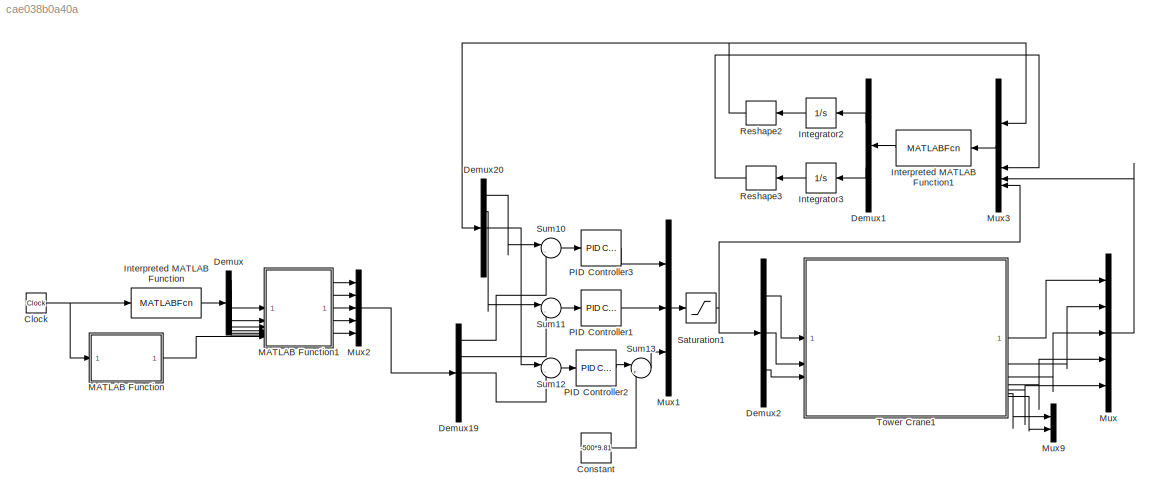
MODEL slx_cae038b0a40a
KIND model
CONFIG AbsTol = 1e-3
CONFIG EnableMultiTasking = on
CONFIG FixedStep = 0.024
CONFIG MaxStep = auto
CONFIG MinStep = auto
CONFIG RelTol = 1e-3
CONFIG SampleTimeConstraint = Unconstrained
CONFIG SolverName = FixedStepAuto
CONFIG StartTime = 0.0
CONFIG StopTime = 100
WORKSPACE source: MATLAB code (in-file)
WORKSPACE rCord = 0.25
WORKSPACE rho = 8000
WORKSPACE rContactHoist = 7
WORKSPACE rPitchHoist = rContactHoist + rCord  (= 7.25)
WORKSPACE code: Hoist.RGB = [0.35 0.35 1.0]; % Color, RGB 0-1
WORKSPACE rContactTrolley = 5
WORKSPACE rPitchTrolley = rContactTrolley + rCord  (= 5.25)
WORKSPACE code: Trolley.RGB = [1 0.15 0.15]; % Color, RGB 0-1
BLOCK [Clock] Clock
BLOCK [Constant] Constant
  Value = -500*9.81
BLOCK [Demux] Demux
  Outputs = 6
BLOCK [Demux] Demux1
  NameLocation = top
  Outputs = 2
BLOCK [Demux] Demux19
  Outputs = 5
BLOCK [Demux] Demux2
  Outputs = 3
BLOCK [Demux] Demux20
  Outputs = 5
BLOCK [Integrator] Integrator2
  InitialCondition = [0;0;45;0;0]
  NameLocation = top
BLOCK [Integrator] Integrator3
  InitialCondition = [0;0;0;0;0]
  NameLocation = top
BLOCK [MATLABFcn] Interpreted MATLAB Function
  MATLABFcn = referenceflat1
  OutputDimensions = 6
BLOCK [MATLABFcn] Interpreted MATLAB Function1
  MATLABFcn = finiteeso1
  NameLocation = top
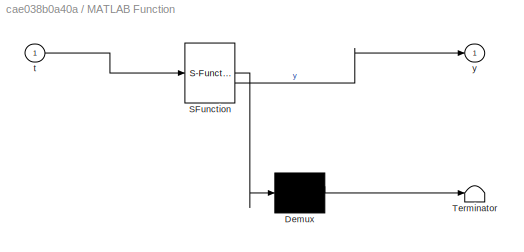
BLOCK [SubSystem] MATLAB Function
  ErrorFcn = Stateflow.Translate.translate
  PermitHierarchicalResolution = ExplicitOnly
  SFBlockType = MATLAB Function
  TreatAsAtomicUnit = on
BLOCK [Demux] MATLAB Function/ Demux 
  Outputs = 1
BLOCK [S-Function] MATLAB Function/ SFunction 
  EnableBusSupport = on
  FunctionName = sf_sfun
  PortCounts = [1 2]
  SFcnIsStateOwnerBlock = off
  SFunctionDeploymentMode = off
  Tag = Stateflow S-Function 14
BLOCK [Terminator] MATLAB Function/ Terminator 
BLOCK [Inport] MATLAB Function/t
BLOCK [Outport] MATLAB Function/y
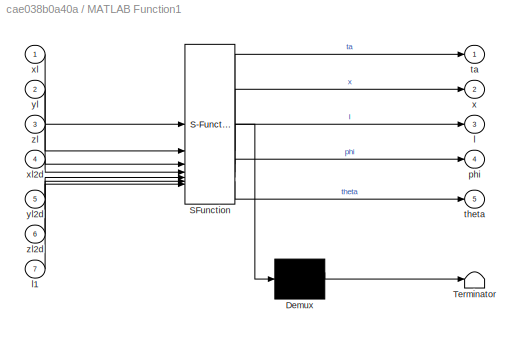
BLOCK [SubSystem] MATLAB Function1
  ErrorFcn = Stateflow.Translate.translate
  PermitHierarchicalResolution = ExplicitOnly
  SFBlockType = MATLAB Function
  TreatAsAtomicUnit = on
BLOCK [Demux] MATLAB Function1/ Demux 
  Outputs = 1
BLOCK [S-Function] MATLAB Function1/ SFunction 
  EnableBusSupport = on
  FunctionName = sf_sfun
  PortCounts = [7 6]
  SFcnIsStateOwnerBlock = off
  SFunctionDeploymentMode = off
  Tag = Stateflow S-Function 1
BLOCK [Terminator] MATLAB Function1/ Terminator 
BLOCK [Outport] MATLAB Function1/l
  Port = 3
BLOCK [Inport] MATLAB Function1/l1
  Port = 7
BLOCK [Outport] MATLAB Function1/phi
  Port = 4
BLOCK [Outport] MATLAB Function1/ta
BLOCK [Outport] MATLAB Function1/theta
  Port = 5
BLOCK [Outport] MATLAB Function1/x
  Port = 2
BLOCK [Inport] MATLAB Function1/xl
BLOCK [Inport] MATLAB Function1/xl2d
  Port = 4
BLOCK [Inport] MATLAB Function1/yl
  Port = 2
BLOCK [Inport] MATLAB Function1/yl2d
  Port = 5
BLOCK [Inport] MATLAB Function1/zl
  Port = 3
BLOCK [Inport] MATLAB Function1/zl2d
  Port = 6
BLOCK [Mux] Mux
  DisplayOption = bar
  Inputs = 5
BLOCK [Mux] Mux1
  DisplayOption = bar
  Inputs = 3
BLOCK [Mux] Mux2
  DisplayOption = bar
  Inputs = 5
BLOCK [Mux] Mux3
  DisplayOption = bar
  NameLocation = top
BLOCK [Mux] Mux9
  DisplayOption = bar
  Inputs = 2
BLOCK [Reference] PID Controller1  REF=slpidlib/PID Controller
  SourceBlock = slpidlib/PID Controller
  SourceType = PID 1dof
BLOCK [Reference] PID Controller2  REF=slpidlib/PID Controller
  SourceBlock = slpidlib/PID Controller
  SourceType = PID 1dof
BLOCK [Reference] PID Controller3  REF=slpidlib/PID Controller
  SourceBlock = slpidlib/PID Controller
  SourceType = PID 1dof
BLOCK [Reshape] Reshape2
  NameLocation = top
  OutputDimensionality = Customize
  OutputDimensions = [5,1]
BLOCK [Reshape] Reshape3
  NameLocation = top
  OutputDimensionality = Customize
  OutputDimensions = [5,1]
BLOCK [Saturate] Saturation1
  LowerLimit = [-4000;-4000;-10000]
  UpperLimit = [4000;4000;0]
BLOCK [Sum] Sum10
  Inputs = |-+
BLOCK [Sum] Sum11
  Inputs = |-+
BLOCK [Sum] Sum12
  Inputs = |-+
BLOCK [Sum] Sum13
  Inputs = |++
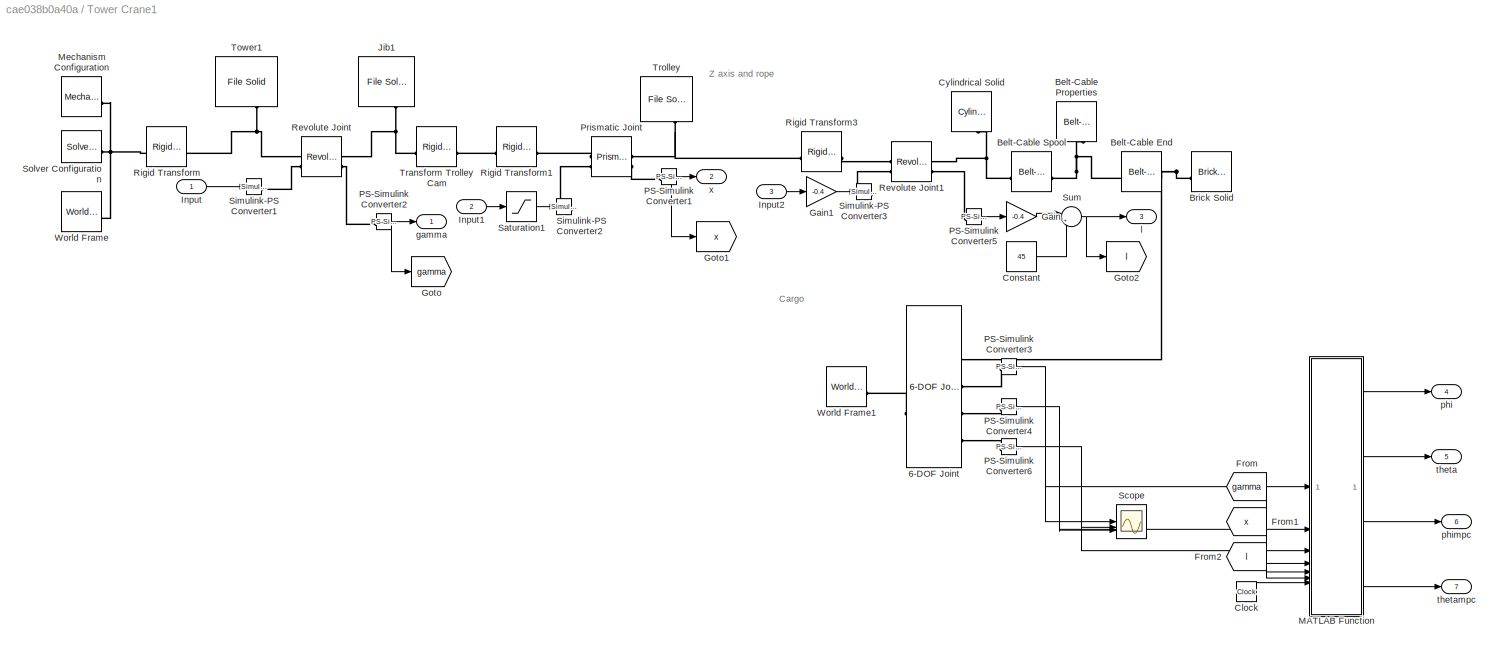
BLOCK [SubSystem] Tower Crane1
  Tag = PublishSubsystem
BLOCK [Reference] Tower Crane1/6-DOF Joint  REF=sm_lib/Joints/6-DOF Joint
  SourceBlock = sm_lib/Joints/6-DOF Joint
  SourceType = 6-DOF Joint
BLOCK [Reference] Tower Crane1/Belt-Cable End  REF=sm_lib/Belts and Cables/Belt-Cable End
  NameLocation = top
  SourceBlock = sm_lib/Belts and Cables/Belt-Cable End
  SourceType = Belt-Cable End
BLOCK [Reference] Tower Crane1/Belt-Cable Properties  REF=sm_lib/Belts and Cables/Belt-Cable
Properties
  NameLocation = right
  SourceBlock = sm_lib/Belts and Cables/Belt-Cable\nProperties
  SourceType = Belt-Cable\nProperties
BLOCK [Reference] Tower Crane1/Belt-Cable Spool  REF=sm_lib/Belts and Cables/Belt-Cable Spool
  SourceBlock = sm_lib/Belts and Cables/Belt-Cable Spool
  SourceType = Belt-Cable Spool
BLOCK [Reference] Tower Crane1/Brick Solid  REF=sm_lib/Body Elements/Brick Solid
  NameLocation = right
  SourceBlock = sm_lib/Body Elements/Brick Solid
  SourceType = Brick Solid
BLOCK [Clock] Tower Crane1/Clock
BLOCK [Constant] Tower Crane1/Constant
  Value = 45
BLOCK [Reference] Tower Crane1/Cylindrical Solid  REF=sm_lib/Body Elements/Cylindrical Solid
  NameLocation = left
  SourceBlock = sm_lib/Body Elements/Cylindrical Solid
  SourceType = Cylindrical Solid
BLOCK [From] Tower Crane1/From
  GotoTag = gamma
BLOCK [From] Tower Crane1/From1
  GotoTag = x
BLOCK [From] Tower Crane1/From2
  GotoTag = l
BLOCK [Gain] Tower Crane1/Gain
  Gain = -0.4
BLOCK [Gain] Tower Crane1/Gain1
  Gain = -0.4
BLOCK [Goto] Tower Crane1/Goto
  GotoTag = gamma
BLOCK [Goto] Tower Crane1/Goto1
  GotoTag = x
BLOCK [Goto] Tower Crane1/Goto2
  GotoTag = l
BLOCK [Inport] Tower Crane1/Input
BLOCK [Inport] Tower Crane1/Input1
  Port = 2
BLOCK [Inport] Tower Crane1/Input2
  Port = 3
BLOCK [Reference] Tower Crane1/Jib1  REF=sm_lib/Body Elements/File Solid
  NameLocation = left
  SourceBlock = sm_lib/Body Elements/File Solid
  SourceType = File Solid
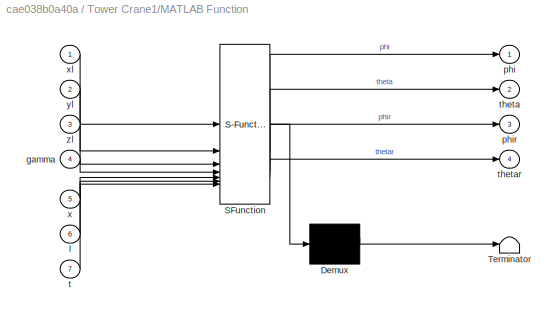
BLOCK [SubSystem] Tower Crane1/MATLAB Function
  ErrorFcn = Stateflow.Translate.translate
  PermitHierarchicalResolution = ExplicitOnly
  SFBlockType = MATLAB Function
  TreatAsAtomicUnit = on
BLOCK [Demux] Tower Crane1/MATLAB Function/ Demux 
  Outputs = 1
BLOCK [S-Function] Tower Crane1/MATLAB Function/ SFunction 
  EnableBusSupport = on
  FunctionName = sf_sfun
  PortCounts = [7 5]
  SFcnIsStateOwnerBlock = off
  SFunctionDeploymentMode = off
  Tag = Stateflow S-Function 3
BLOCK [Terminator] Tower Crane1/MATLAB Function/ Terminator 
BLOCK [Inport] Tower Crane1/MATLAB Function/gamma
  Port = 4
BLOCK [Inport] Tower Crane1/MATLAB Function/l
  Port = 6
BLOCK [Outport] Tower Crane1/MATLAB Function/phi
BLOCK [Outport] Tower Crane1/MATLAB Function/phir
  Port = 3
BLOCK [Inport] Tower Crane1/MATLAB Function/t
  Port = 7
BLOCK [Outport] Tower Crane1/MATLAB Function/theta
  Port = 2
BLOCK [Outport] Tower Crane1/MATLAB Function/thetar
  Port = 4
BLOCK [Inport] Tower Crane1/MATLAB Function/x
  Port = 5
BLOCK [Inport] Tower Crane1/MATLAB Function/xl
BLOCK [Inport] Tower Crane1/MATLAB Function/yl
  Port = 2
BLOCK [Inport] Tower Crane1/MATLAB Function/zl
  Port = 3
BLOCK [Reference] Tower Crane1/Mechanism Configuration  REF=sm_lib/Utilities/Mechanism
Configuration
  NameLocation = top
  SourceBlock = sm_lib/Utilities/Mechanism\nConfiguration
  SourceType = Mechanism\nConfiguration
BLOCK [Reference] Tower Crane1/PS-Simulink Converter1  REF=nesl_utility/PS-Simulink
Converter
  SourceBlock = nesl_utility/PS-Simulink\nConverter
  SourceType = PS-Simulink\nConverter
BLOCK [Reference] Tower Crane1/PS-Simulink Converter2  REF=nesl_utility/PS-Simulink
Converter
  SourceBlock = nesl_utility/PS-Simulink\nConverter
  SourceType = PS-Simulink\nConverter
BLOCK [Reference] Tower Crane1/PS-Simulink Converter3  REF=nesl_utility/PS-Simulink
Converter
  SourceBlock = nesl_utility/PS-Simulink\nConverter
  SourceType = PS-Simulink\nConverter
BLOCK [Reference] Tower Crane1/PS-Simulink Converter4  REF=nesl_utility/PS-Simulink
Converter
  SourceBlock = nesl_utility/PS-Simulink\nConverter
  SourceType = PS-Simulink\nConverter
BLOCK [Reference] Tower Crane1/PS-Simulink Converter5  REF=nesl_utility/PS-Simulink
Converter
  SourceBlock = nesl_utility/PS-Simulink\nConverter
  SourceType = PS-Simulink\nConverter
BLOCK [Reference] Tower Crane1/PS-Simulink Converter6  REF=nesl_utility/PS-Simulink
Converter
  SourceBlock = nesl_utility/PS-Simulink\nConverter
  SourceType = PS-Simulink\nConverter
BLOCK [Reference] Tower Crane1/Prismatic Joint  REF=sm_lib/Joints/Prismatic
Joint
  SourceBlock = sm_lib/Joints/Prismatic\nJoint
  SourceType = Prismatic\nJoint
BLOCK [Reference] Tower Crane1/Revolute Joint  REF=sm_lib/Joints/Revolute Joint
  SourceBlock = sm_lib/Joints/Revolute Joint
  SourceType = Revolute Joint
BLOCK [Reference] Tower Crane1/Revolute Joint1  REF=sm_lib/Joints/Revolute Joint
  SourceBlock = sm_lib/Joints/Revolute Joint
  SourceType = Revolute Joint
BLOCK [Reference] Tower Crane1/Rigid Transform  REF=sm_lib/Frames and
Transforms/Rigid
Transform
  SourceBlock = sm_lib/Frames and\nTransforms/Rigid\nTransform
  SourceType = Rigid\nTransform
BLOCK [Reference] Tower Crane1/Rigid Transform1  REF=sm_lib/Frames and
Transforms/Rigid
Transform
  NameLocation = right
  SourceBlock = sm_lib/Frames and\nTransforms/Rigid\nTransform
  SourceType = Rigid\nTransform
BLOCK [Reference] Tower Crane1/Rigid Transform3  REF=sm_lib/Frames and
Transforms/Rigid
Transform
  SourceBlock = sm_lib/Frames and\nTransforms/Rigid\nTransform
  SourceType = Rigid\nTransform
BLOCK [Saturate] Tower Crane1/Saturation1
  LowerLimit = -100
  UpperLimit = 100
BLOCK [Scope] Tower Crane1/Scope
  Floating = off
  NumInputPorts = 3
  ScopeSpecificationString = Simulink.scopes.TimeScopeBlockCfg('CurrentConfiguration', extmgr.ConfigurationSet(extmgr.Configuration('Core','General UI',true),extmgr.Configuration('Core','Source UI',true),extmgr.Configuration('Sources','WiredSimulink',true,'DataLoggingVariableName','ScopeData5'),extmgr.Configuration('Visuals','Time Domain',true,'SerializedDisplays',{struct('MinYLimReal','2.31996','MaxYLimReal','4.70651','YLabe...<+1543ch>
BLOCK [Reference] Tower Crane1/Simulink-PS Converter1  REF=nesl_utility/Simulink-PS
Converter
  SourceBlock = nesl_utility/Simulink-PS\nConverter
  SourceType = Simulink-PS\nConverter
BLOCK [Reference] Tower Crane1/Simulink-PS Converter2  REF=nesl_utility/Simulink-PS
Converter
  SourceBlock = nesl_utility/Simulink-PS\nConverter
  SourceType = Simulink-PS\nConverter
BLOCK [Reference] Tower Crane1/Simulink-PS Converter3  REF=nesl_utility/Simulink-PS
Converter
  SourceBlock = nesl_utility/Simulink-PS\nConverter
  SourceType = Simulink-PS\nConverter
BLOCK [Reference] Tower Crane1/Solver Configuration  REF=nesl_utility/Solver
Configuration
  SourceBlock = nesl_utility/Solver\nConfiguration
  SourceType = Solver\nConfiguration
BLOCK [Sum] Tower Crane1/Sum
  Inputs = |++
BLOCK [Reference] Tower Crane1/Tower1  REF=sm_lib/Body Elements/File Solid
  NameLocation = right
  SourceBlock = sm_lib/Body Elements/File Solid
  SourceType = File Solid
BLOCK [Reference] Tower Crane1/Transform Trolley Cam  REF=sm_lib/Frames and
Transforms/Rigid
Transform
  SourceBlock = sm_lib/Frames and\nTransforms/Rigid\nTransform
  SourceType = Rigid\nTransform
BLOCK [Reference] Tower Crane1/Trolley   REF=sm_lib/Body Elements/File Solid
  NameLocation = left
  SourceBlock = sm_lib/Body Elements/File Solid
  SourceType = File Solid
BLOCK [Reference] Tower Crane1/World Frame  REF=sm_lib/Frames and
Transforms/World Frame
  SourceBlock = sm_lib/Frames and\nTransforms/World Frame
  SourceType = World Frame
BLOCK [Reference] Tower Crane1/World Frame1  REF=sm_lib/Frames and
Transforms/World Frame
  SourceBlock = sm_lib/Frames and\nTransforms/World Frame
  SourceType = World Frame
BLOCK [Outport] Tower Crane1/gamma
BLOCK [Outport] Tower Crane1/l
  Port = 3
BLOCK [Outport] Tower Crane1/phi
  Port = 4
BLOCK [Outport] Tower Crane1/phimpc
  Port = 6
BLOCK [Outport] Tower Crane1/theta
  Port = 5
BLOCK [Outport] Tower Crane1/thetampc
  Port = 7
BLOCK [Outport] Tower Crane1/x
  Port = 2
ANNOTATION Tower Crane1: Cargo
ANNOTATION Tower Crane1: Z axis and rope
NET Clock:1 -> Interpreted MATLAB Function:1, MATLAB Function:1
LINE Constant:1 -> Sum13:2
LINE Demux19:1 -> Sum10:2
LINE Demux19:2 -> Sum11:2
LINE Demux19:3 -> Sum12:2
LINE Demux1:1 -> Integrator2:1
LINE Demux1:2 -> Integrator3:1
LINE Demux20:1 -> Sum10:1
LINE Demux20:2 -> Sum11:1
LINE Demux20:3 -> Sum12:1
LINE Demux2:1 -> Tower Crane1:1
LINE Demux2:2 -> Tower Crane1:2
LINE Demux2:3 -> Tower Crane1:3
LINE Demux:1 -> MATLAB Function1:1
LINE Demux:2 -> MATLAB Function1:2
LINE Demux:3 -> MATLAB Function1:3
LINE Demux:4 -> MATLAB Function1:4
LINE Demux:5 -> MATLAB Function1:5
LINE Demux:6 -> MATLAB Function1:6
LINE Integrator2:1 -> Reshape2:1
LINE Integrator3:1 -> Reshape3:1
LINE Interpreted MATLAB Function1:1 -> Demux1:1
LINE Interpreted MATLAB Function:1 -> Demux:1
LINE MATLAB Function1:1 -> Mux2:1
LINE MATLAB Function1:2 -> Mux2:2
LINE MATLAB Function1:3 -> Mux2:3
LINE MATLAB Function1:4 -> Mux2:4
LINE MATLAB Function1:5 -> Mux2:5
LINE MATLAB Function:1 -> MATLAB Function1:7
LINE Mux1:1 -> Saturation1:1
LINE Mux2:1 -> Demux19:1
LINE Mux3:1 -> Interpreted MATLAB Function1:1
LINE Mux:1 -> Mux3:3
LINE PID Controller1:1 -> Mux1:2
LINE PID Controller2:1 -> Sum13:1
LINE PID Controller3:1 -> Mux1:1
NET Reshape2:1 -> Demux20:1, Mux3:1
LINE Reshape3:1 -> Mux3:2
NET Saturation1:1 -> Demux2:1, Mux3:4
LINE Sum10:1 -> PID Controller3:1
LINE Sum11:1 -> PID Controller1:1
LINE Sum12:1 -> PID Controller2:1
LINE Sum13:1 -> Mux1:3
LINE Tower Crane1/Clock:1 -> Tower Crane1/MATLAB Function:7
LINE Tower Crane1/Constant:1 -> Tower Crane1/Sum:2
LINE Tower Crane1/From1:1 -> Tower Crane1/MATLAB Function:5
LINE Tower Crane1/From2:1 -> Tower Crane1/MATLAB Function:6
LINE Tower Crane1/From:1 -> Tower Crane1/MATLAB Function:4
LINE Tower Crane1/Gain1:1 -> Tower Crane1/Simulink-PS Converter3:1
LINE Tower Crane1/Gain:1 -> Tower Crane1/Sum:1
LINE Tower Crane1/Input1:1 -> Tower Crane1/Saturation1:1
LINE Tower Crane1/Input2:1 -> Tower Crane1/Gain1:1
LINE Tower Crane1/Input:1 -> Tower Crane1/Simulink-PS Converter1:1
LINE Tower Crane1/MATLAB Function:1 -> Tower Crane1/phi:1
LINE Tower Crane1/MATLAB Function:2 -> Tower Crane1/theta:1
LINE Tower Crane1/MATLAB Function:3 -> Tower Crane1/phimpc:1
LINE Tower Crane1/MATLAB Function:4 -> Tower Crane1/thetampc:1
NET Tower Crane1/PS-Simulink Converter1:1 -> Tower Crane1/Goto1:1, Tower Crane1/x:1
NET Tower Crane1/PS-Simulink Converter2:1 -> Tower Crane1/Goto:1, Tower Crane1/gamma:1
NET Tower Crane1/PS-Simulink Converter3:1 -> Tower Crane1/MATLAB Function:1, Tower Crane1/Scope:1
NET Tower Crane1/PS-Simulink Converter4:1 -> Tower Crane1/MATLAB Function:2, Tower Crane1/Scope:3
LINE Tower Crane1/PS-Simulink Converter5:1 -> Tower Crane1/Gain:1
NET Tower Crane1/PS-Simulink Converter6:1 -> Tower Crane1/MATLAB Function:3, Tower Crane1/Scope:2
LINE Tower Crane1/Saturation1:1 -> Tower Crane1/Simulink-PS Converter2:1
NET Tower Crane1/Sum:1 -> Tower Crane1/Goto2:1, Tower Crane1/l:1
LINE Tower Crane1:1 -> Mux:1
LINE Tower Crane1:2 -> Mux:2
LINE Tower Crane1:3 -> Mux:3
LINE Tower Crane1:4 -> Mux:4
LINE Tower Crane1:5 -> Mux:5
LINE Tower Crane1:6 -> Mux9:1
LINE Tower Crane1:7 -> Mux9:2
PLINE Tower Crane1/6-DOF Joint:LConn1 -- Tower Crane1/World Frame1:RConn1
PNET net1: Tower Crane1/6-DOF Joint:RConn1 -- Tower Crane1/Belt-Cable End:LConn1 -- Tower Crane1/Brick Solid:RConn1
PLINE Tower Crane1/6-DOF Joint:RConn2 -- Tower Crane1/PS-Simulink Converter3:LConn1
PLINE Tower Crane1/6-DOF Joint:RConn3 -- Tower Crane1/PS-Simulink Converter4:LConn1
PLINE Tower Crane1/6-DOF Joint:RConn4 -- Tower Crane1/PS-Simulink Converter6:LConn1
PNET net2: Tower Crane1/Belt-Cable End:RConn1 -- Tower Crane1/Belt-Cable Properties:LConn1 -- Tower Crane1/Belt-Cable Spool:RConn1
PNET net3: Tower Crane1/Belt-Cable Spool:LConn1 -- Tower Crane1/Cylindrical Solid:RConn1 -- Tower Crane1/Revolute Joint1:RConn1
PNET net4: Tower Crane1/Jib1:RConn1 -- Tower Crane1/Revolute Joint:RConn1 -- Tower Crane1/Transform Trolley Cam:RConn1
PNET net5: Tower Crane1/Mechanism Configuration:RConn1 -- Tower Crane1/Rigid Transform:LConn1 -- Tower Crane1/Solver Configuration:RConn1 -- Tower Crane1/World Frame:RConn1
PLINE Tower Crane1/PS-Simulink Converter1:LConn1 -- Tower Crane1/Prismatic Joint:RConn2
PLINE Tower Crane1/PS-Simulink Converter2:LConn1 -- Tower Crane1/Revolute Joint:RConn2
PLINE Tower Crane1/PS-Simulink Converter5:LConn1 -- Tower Crane1/Revolute Joint1:RConn2
PLINE Tower Crane1/Prismatic Joint:LConn1 -- Tower Crane1/Rigid Transform1:RConn1
PLINE Tower Crane1/Prismatic Joint:LConn2 -- Tower Crane1/Simulink-PS Converter2:RConn1
PNET net6: Tower Crane1/Prismatic Joint:RConn1 -- Tower Crane1/Rigid Transform3:LConn1 -- Tower Crane1/Trolley :RConn1
PLINE Tower Crane1/Revolute Joint1:LConn1 -- Tower Crane1/Rigid Transform3:RConn1
PLINE Tower Crane1/Revolute Joint1:LConn2 -- Tower Crane1/Simulink-PS Converter3:RConn1
PNET net7: Tower Crane1/Revolute Joint:LConn1 -- Tower Crane1/Rigid Transform:RConn1 -- Tower Crane1/Tower1:RConn1
PLINE Tower Crane1/Revolute Joint:LConn2 -- Tower Crane1/Simulink-PS Converter1:RConn1
PLINE Tower Crane1/Rigid Transform1:LConn1 -- Tower Crane1/Transform Trolley Cam:LConn1
note: NET lines group one-source signal fan-out (src -> all destinations, sorted); 1:1 wires keep LINE; PNET lines group multi-terminal physical nets as a canonical sorted terminal list (undirected conserving connections); 2-terminal nets keep the pairwise PLINE form
CHART MATLAB Function1 states=1 transitions=1
  STATE_LABEL 'eML_blk_kernel()'
  STATE_LABEL 'SCRIPT:\nfunction [ta,x,l,phi,theta] = fcn(xl,yl,zl,xl2d,yl2d,zl2d,l1)\nh=45;\ng=9.81;\nphi=-atan(xl2d/(g + zl2d));\ntheta=atan(yl2d/((g + zl2d)^2 + xl2d^2)^(1/2));\nl=(xl2d^2/(g + zl2d)^2 + 1)^(1/2)*(h - zl)*(yl2d^2/((g + zl2d)^2 + xl2d^2) + 1)^(1/2);\nx=sqrt(xl^2+yl^2);\nta=12/300*l1;\nend'
CHART Tower Crane1/MATLAB Function states=1 transitions=1
  STATE_LABEL 'eML_blk_kernel()'
  STATE_LABEL 'SCRIPT:\nfunction [phi,theta,phir,thetar] = fcn(xl,yl,zl,gamma,x,l,t)\nx=x+6;\nxl=-xl+0.4;\nyl=-yl;\ng=9.81;\nl=10*l;\n\ntheta=0;\nphi=0;\nphir=asin((yl-x*sin(gamma))/l)*50+0.02;\nthetar=asin((xl-x*cos(gamma))/(l*cos(theta)))*50+0.02;\n\n\nend'
CHART MATLAB Function states=1 transitions=1
  STATE_LABEL 'eML_blk_kernel()'
  STATE_LABEL 'SCRIPT:\nfunction y = fcn(t)\nl1 = [0\n2.14655856731433e-05\n8.56149925693832e-05\n0.000192184981425011\n0.000341143762915880\n0.000532459525626028\n0.000766100436036504\n0.00104203463851420\n0.00136023025530071\n0.00172065538650123\n0.00212327811007344\n0.00256806648181646\n0.00305498853535977\n0.00358401228215222\n0.00415510571145098\n0.00476823679031061\n0.00542337346357207\n0.00612048365385178\n0.0068595352615307...<+3608ch>'
CHART  states=0 transitions=0
CHART  states=0 transitions=0
CHART  states=0 transitions=0
